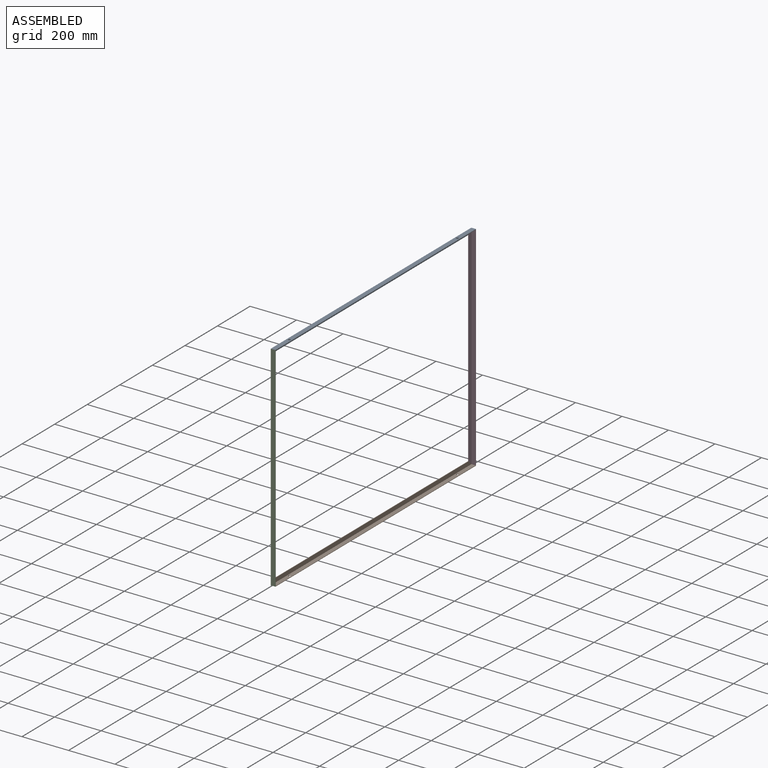
[diagram: assembled view]
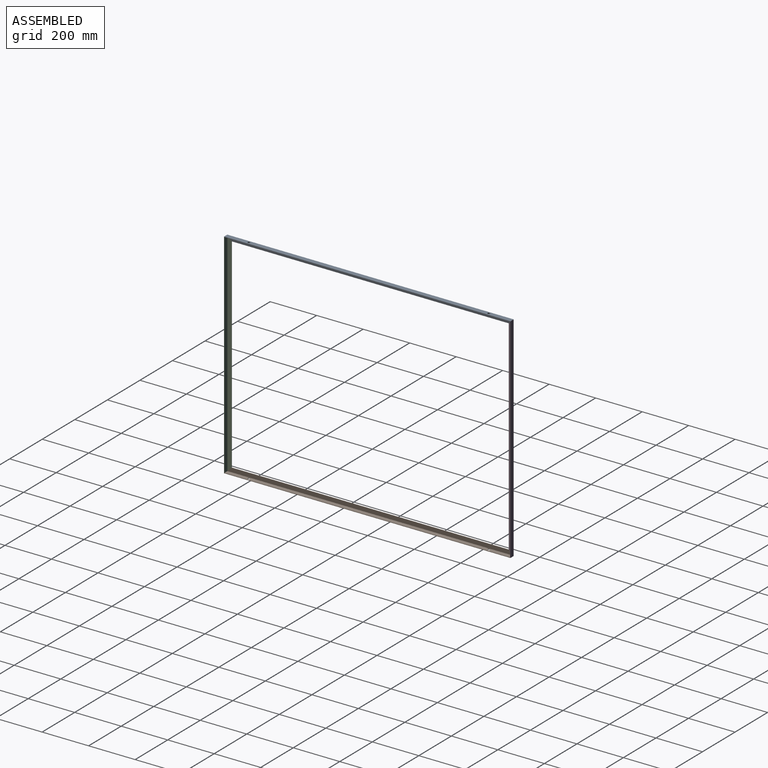
[diagram: assembled view, second angle]
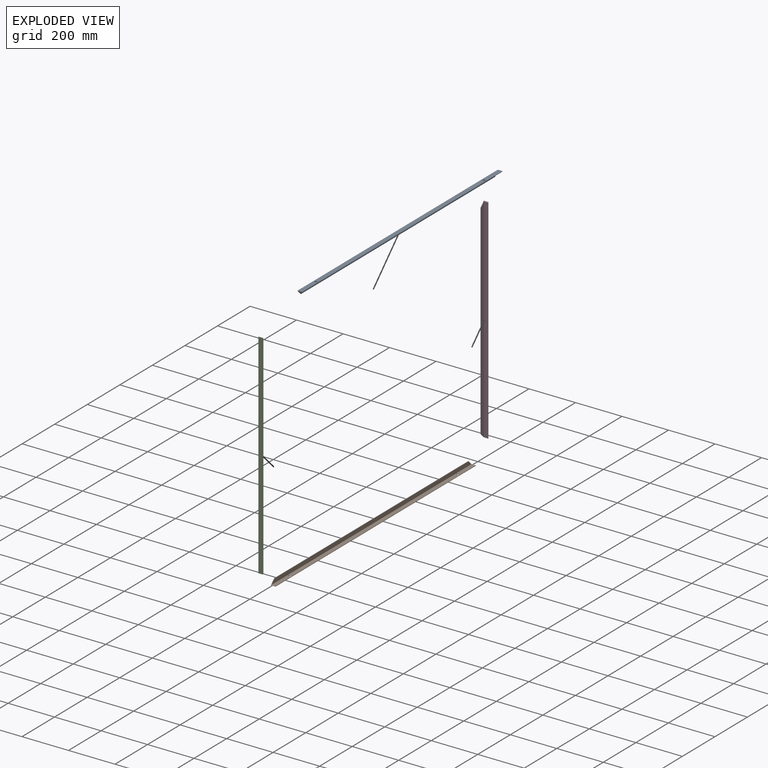
[diagram: exploded view]
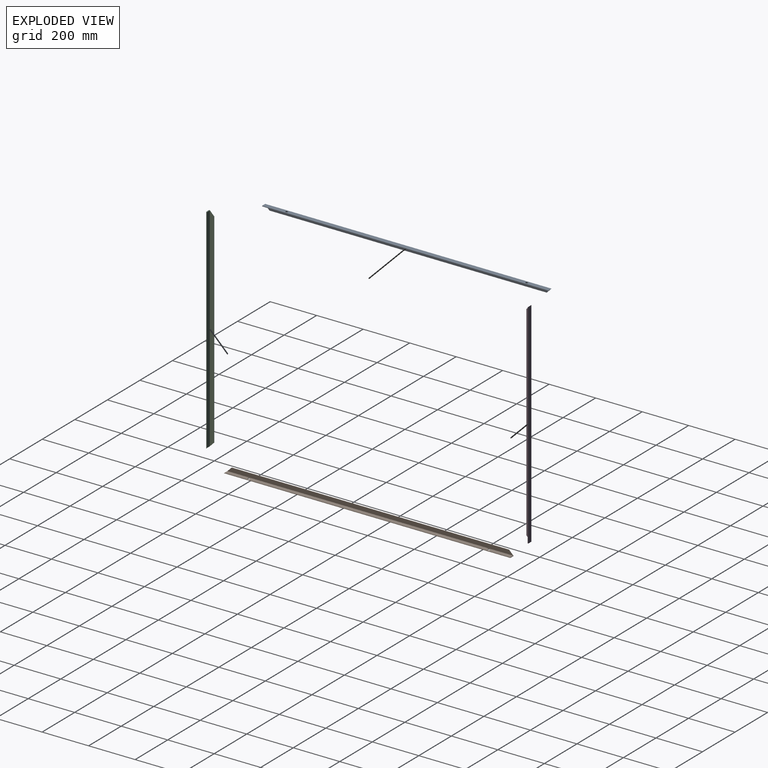
[diagram: exploded view, second angle]
ASSEMBLY  parts=4 mates=3
PART A: 10 faces, bbox 20x1232x20 mm
  f0: plane 1232x20mm, normal (-1,0,0), area 24240mm2, adj f1,f5,f6,f7
  f1: plane 1192x2mm, normal (0,0,1), area 2384mm2, adj f0,f4,f6,f7
  f2: plane 1232x2mm, normal (1,0,0), area 2460mm2, adj f3,f5,f6,f7
  f3: plane 1228x18mm, normal (0,0,1), area 21946.9mm2, adj f2,f4,f6,f7,f8,f9
  f4: plane 1228x18mm, normal (1,0,0), area 21780mm2, adj f1,f3,f6,f7
  f5: plane 1232x20mm, normal (0,0,-1), area 24482.9mm2, adj f0,f2,f6,f7,f8,f9
  f6: plane 20x20mm, normal (0,0.71,0.71), area 107.5mm2, adj f0,f1,f2,f3,f4,f5
  f7: plane 20x20mm, normal (0,-0.71,0.71), area 107.5mm2, adj f0,f1,f2,f3,f4,f5
  f8: cylinder r=5mm len=10mm, axis (0,0,-1), area 62.8mm2, adj f3,f5
  f9: cylinder r=5mm len=10mm, axis (0,0,-1), area 62.8mm2, adj f3,f5
PART B: same geometry as A
PART C: 8 faces, bbox 20x920x20 mm
  f0: plane 880x2mm, normal (1,0,0), area 1760mm2, adj f2,f3,f6,f7
  f1: plane 920x20mm, normal (-1,0,0), area 18400mm2, adj f2,f5,f6,f7
  f2: plane 920x20mm, normal (0,0,-1), area 18000mm2, adj f0,f1,f6,f7
  f3: plane 916x18mm, normal (0,0,1), area 16164mm2, adj f0,f4,f6,f7
  f4: plane 916x18mm, normal (1,0,0), area 16488mm2, adj f3,f5,f6,f7
  f5: plane 920x2mm, normal (0,0,1), area 1836mm2, adj f1,f4,f6,f7
  f6: plane 20x20mm, normal (0.71,-0.71,0), area 107.5mm2, adj f0,f1,f2,f3,f4,f5
  f7: plane 20x20mm, normal (0.71,0.71,0), area 107.5mm2, adj f0,f1,f2,f3,f4,f5
PART D: same geometry as C
PLACE A rot(axis=(1,0,0),180deg) t=(-255.96,-963.1,602.35)mm
PLACE B t=(-255.96,268.9,-317.65)mm fixed
PLACE C rot(axis=(0.58,0.58,0.58),120deg) t=(-255.96,-963.1,602.35)mm
PLACE D rot(axis=(-0.58,0.58,-0.58),120deg) t=(-255.96,268.9,-317.65)mm
MATE fastened B.f7 <-> C.f6  axis (0,-0.71,0.71) through (-250.22,-957.37,-311.91)mm
MATE fastened C.f7 <-> A.f6  axis (0,0.71,0.71) through (-253.96,-961.1,600.35)mm
MATE fastened B.f6 <-> D.f7  axis (0,0.71,0.71) through (-250.22,263.16,-311.91)mm
